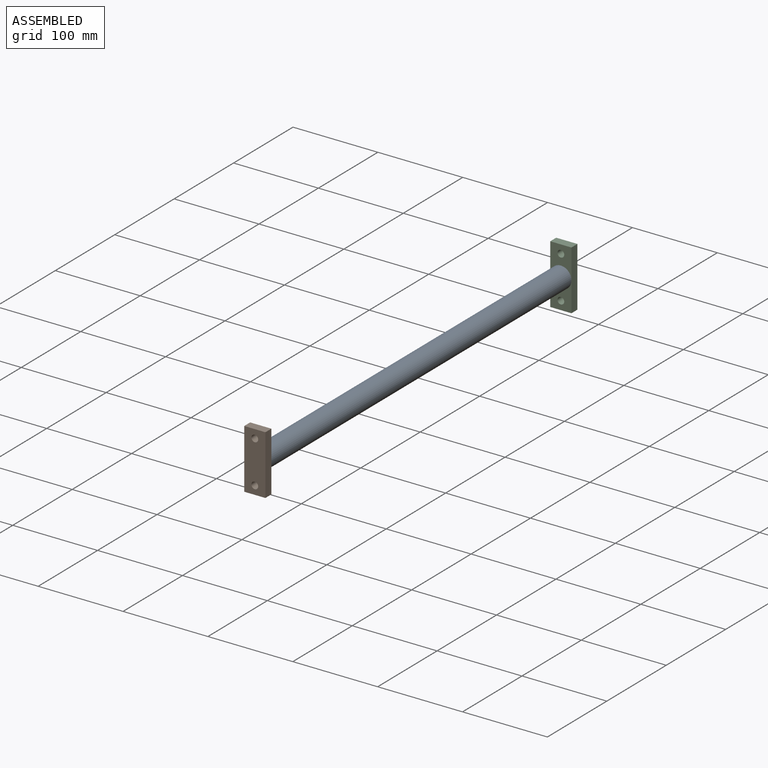
[diagram: assembled view]
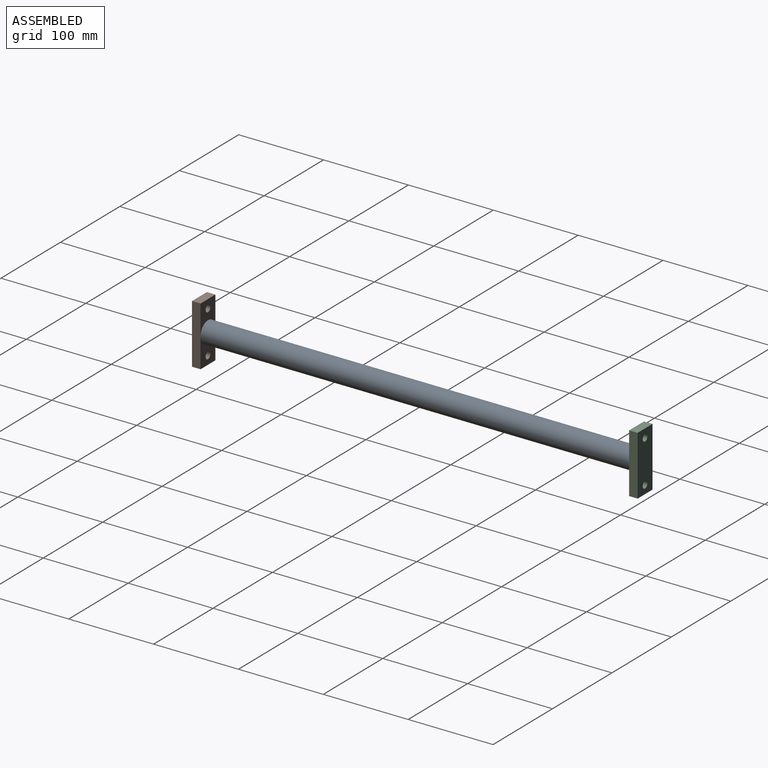
[diagram: assembled view, second angle]
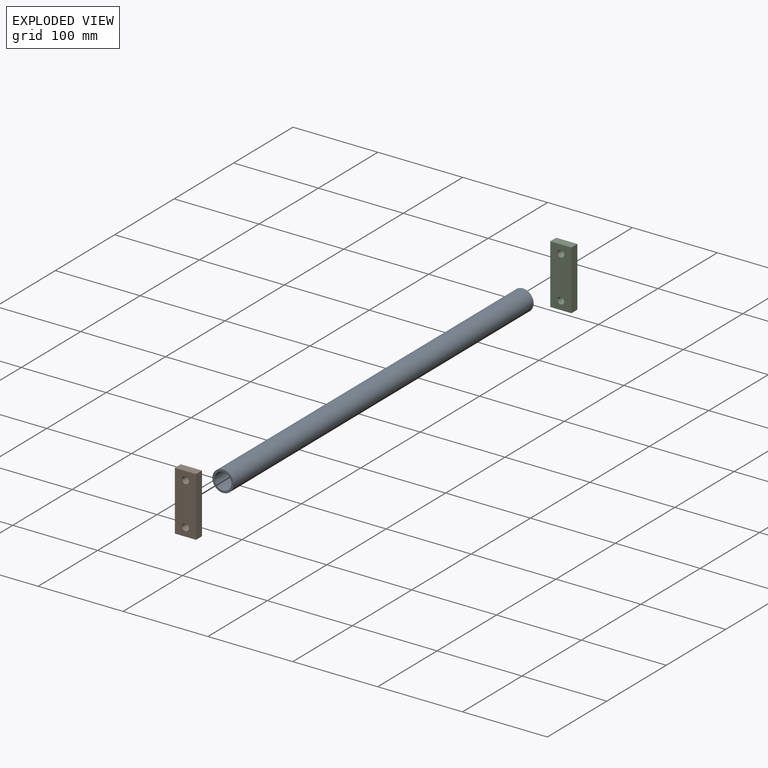
[diagram: exploded view]
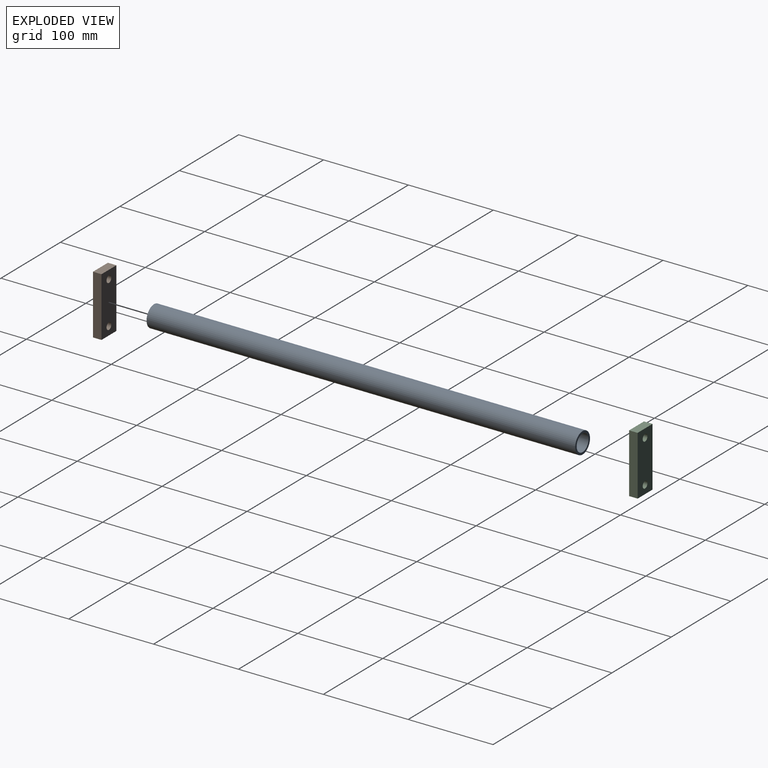
[diagram: exploded view, second angle]
ASSEMBLY  parts=3 mates=2
PART A: 4 faces, bbox 25x505x25 mm
  f0: cylinder r=12.5mm len=505mm, axis (0,1,0), area 39662.6mm2, adj f1,f2
  f1: plane 25x25mm, normal (0,-1,0), area 179.2mm2, adj f0,f3
  f2: plane 25x25mm, normal (0,1,0), area 179.2mm2, adj f0,f3
  f3: cylinder r=9.96mm len=505mm, axis (0,1,0), area 31603.2mm2, adj f1,f2
PART B: 8 faces, bbox 25x10x70 mm
  f0: plane 25x10mm, normal (0,0,-1), area 250mm2, adj f1,f3,f4,f5
  f1: plane 70x10mm, normal (1,0,0), area 700mm2, adj f0,f2,f4,f5
  f2: plane 25x10mm, normal (0,0,1), area 250mm2, adj f1,f3,f4,f5
  f3: plane 70x10mm, normal (-1,0,0), area 700mm2, adj f0,f2,f4,f5
  f4: plane 70x25mm, normal (0,-1,0), area 1649.5mm2, adj f0,f1,f2,f3,f6,f7
  f5: plane 70x25mm, normal (0,1,0), area 1649.5mm2, adj f0,f1,f2,f3,f6,f7
  f6: cylinder r=4mm len=10mm, axis (0,1,0), area 251.3mm2, adj f4,f5
  f7: cylinder r=4mm len=10mm, axis (0,1,0), area 251.3mm2, adj f4,f5
PART C: same geometry as B
PLACE A t=(-138.66,-8.05,-94.21)mm
PLACE B t=(-138.66,-513.05,-94.21)mm
PLACE C t=(-138.66,1.95,-94.21)mm
MATE parallel C.f4 <-> A.f0  axis (0,-1,0) through (-138.66,-8.05,-94.21)mm
MATE parallel B.f5 <-> A.f0  axis (0,1,0) through (-138.66,-513.05,-94.21)mm
